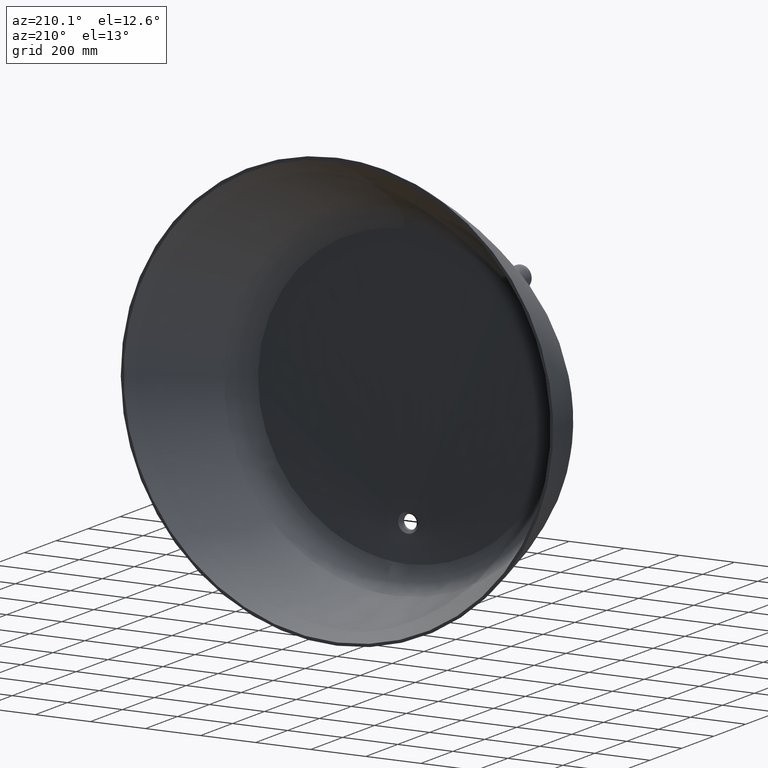
[diagram: clean part render]
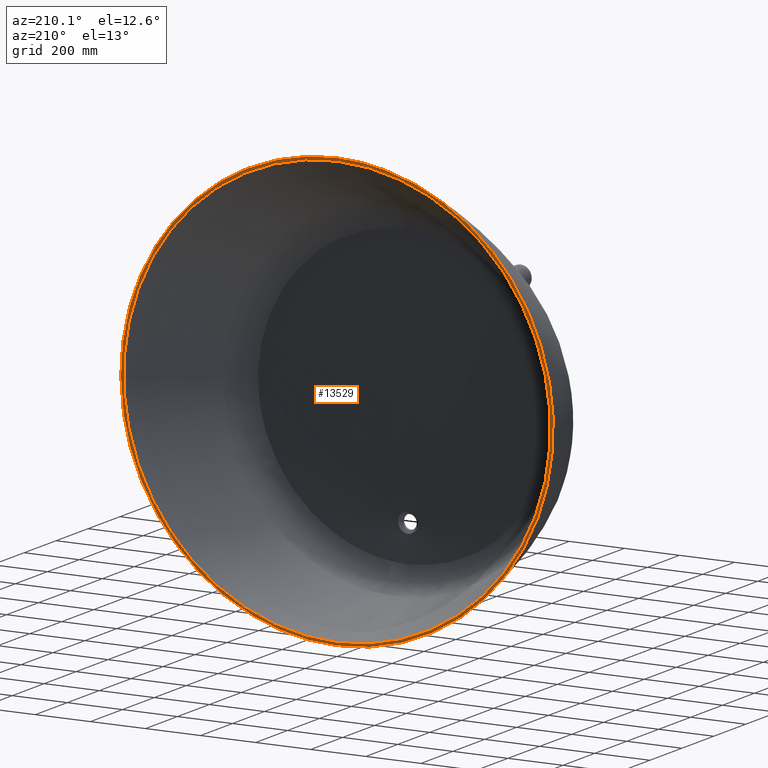
[diagram: same view with one face highlighted and labeled with its STEP entity id]
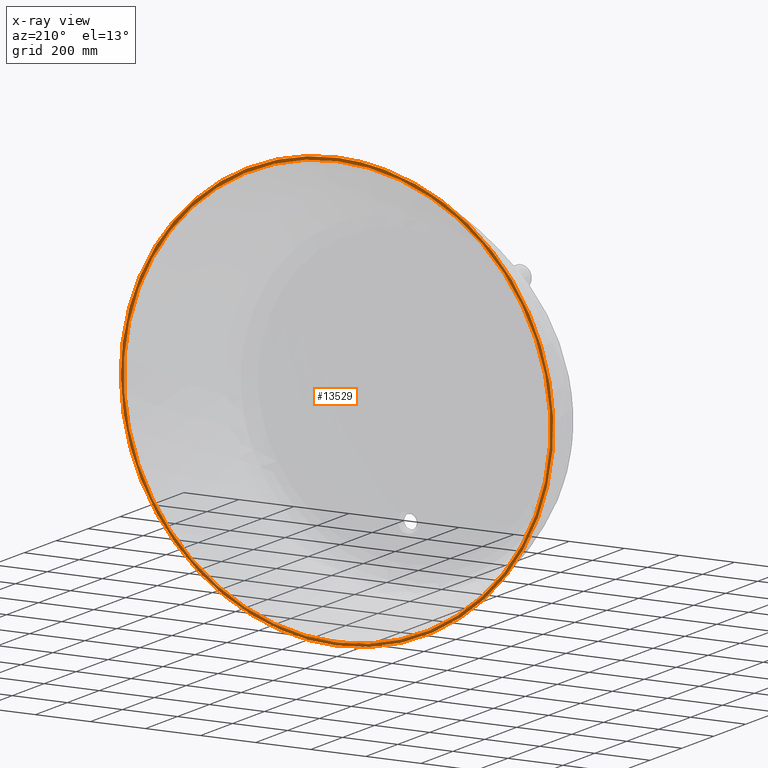
[diagram: x-ray of the same camera — body ghosted, the highlighted face saturated]
A machine part, auxiliary view. The second image highlights one B-rep face of the part: STEP entity #13529.
The next image is the same camera in x-ray: the body ghosted, the highlighted face saturated — about 0% of this face is hidden behind the body in this view.
In plain terms, the highlighted planar face has unit normal (0, 1, 0).
Its self-contained STEP definition (entity closure, byte-faithful):
#189 = CARTESIAN_POINT ( 'NONE',  ( 1.815119978694758100E-013, 1.070107544243192900E-013, -785.0959402566785500 ) ) ;
#229 = CARTESIAN_POINT ( 'NONE',  ( 25.94525831148332900, 3.577867169198714200E-015, -785.0959402566785500 ) ) ;
#244 = CARTESIAN_POINT ( 'NONE',  ( 51.75370344990371800, 1.480261226094463200E-012, -783.8140912657796700 ) ) ;
#293 = CARTESIAN_POINT ( 'NONE',  ( 103.1001083290769000, 1.480261226094461800E-012, -778.7293619315756800 ) ) ;
#302 = CARTESIAN_POINT ( 'NONE',  ( 5.344556381072045500E-015, -3.851086116668511700E-013, 785.9687817933657900 ) ) ;
#308 = CARTESIAN_POINT ( 'NONE',  ( 128.6383085348649300, 5.773376568485289900E-013, -774.9265034201271200 ) ) ;
#350 = CARTESIAN_POINT ( 'NONE',  ( 157.2150163428085800, 5.773376568485241400E-013, -769.2125862332720800 ) ) ;
#366 = CARTESIAN_POINT ( 'NONE',  ( 160.3880644664944300, -8.977193988179908100E-013, -768.5577104700300900 ) ) ;
#475 = CARTESIAN_POINT ( 'NONE',  ( 166.7298632030710300, -8.977193988179958500E-013, -767.2078337859902600 ) ) ;
#539 = CARTESIAN_POINT ( 'NONE',  ( 169.8981915939014300, -4.696763811207227400E-013, -766.5128933312732900 ) ) ;
#570 = CARTESIAN_POINT ( 'NONE',  ( 1.815119978694758100E-013, 1.070107544243192900E-013, -785.0959402566785500 ) ) ;
#593 = CARTESIAN_POINT ( 'NONE',  ( 179.3751002020173900, -4.696763811207205200E-013, -764.3727390240404700 ) ) ;
#661 = CARTESIAN_POINT ( 'NONE',  ( 185.6627972564763800, 6.339330102522747500E-013, -762.8706981761316700 ) ) ;
#724 = CARTESIAN_POINT ( 'NONE',  ( 204.4361666616772800, 6.339330102522762600E-013, -758.1412613569880200 ) ) ;
#739 = CARTESIAN_POINT ( 'NONE',  ( 216.8321830998326000, 2.634611279139757100E-013, -754.6907149976790400 ) ) ;
#779 = CARTESIAN_POINT ( 'NONE',  ( 253.6670764050722900, 2.634611279139776300E-013, -743.4600831323736000 ) ) ;
#797 = CARTESIAN_POINT ( 'NONE',  ( 277.7538758951967000, 1.249000902703290800E-013, -734.8036895164665300 ) ) ;
#839 = CARTESIAN_POINT ( 'NONE',  ( 324.9978469039351100, 1.249000902703300600E-013, -715.1770912194068600 ) ) ;
#858 = CARTESIAN_POINT ( 'NONE',  ( 348.1551300766145700, -1.194357113210041000E-012, -704.2071644412656000 ) ) ;
#885 = CARTESIAN_POINT ( 'NONE',  ( 382.1812122705079000, -1.194357113210030300E-012, -685.9855012937779300 ) ) ;
#921 = CARTESIAN_POINT ( 'NONE',  ( 393.4047094727542900, -8.710480253748558800E-013, -679.6165961227670800 ) ) ;
#1008 = CARTESIAN_POINT ( 'NONE',  ( 407.2830081788543500, -8.710480253748445700E-013, -671.2794498236173700 ) ) ;
#1031 = CARTESIAN_POINT ( 'NONE',  ( 410.0528000324463300, 1.198260241030969800E-012, -669.5921567203579300 ) ) ;
#1074 = CARTESIAN_POINT ( 'NONE',  ( 415.5687996021988500, 1.198260241030974200E-012, -666.1848926833374700 ) ) ;
#1140 = CARTESIAN_POINT ( 'NONE',  ( 418.3133902535020600, 5.009014036883597800E-014, -664.4659541568648800 ) ) ;
#1165 = CARTESIAN_POINT ( 'NONE',  ( 426.5071669839801400, 5.009014036882979400E-014, -659.2634840836200300 ) ) ;
#1204 = CARTESIAN_POINT ( 'NONE',  ( 431.9163613145415200, 1.571008947931500700E-013, -655.7343020095215700 ) ) ;
#1228 = CARTESIAN_POINT ( 'NONE',  ( 458.6984057472073500, 1.571008947931495900E-013, -637.7871190717435200 ) ) ;
#1249 = CARTESIAN_POINT ( 'NONE',  ( 479.2819659694236000, -9.159339953157618200E-013, -622.4681448703335000 ) ) ;
#1314 = CARTESIAN_POINT ( 'NONE',  ( 518.8035867812813000, -9.159339953157541500E-013, -589.9518608471381600 ) ) ;
#1331 = CARTESIAN_POINT ( 'NONE',  ( 537.7418687549669600, 1.541735489274463500E-013, -572.7548037349413300 ) ) ;
#1374 = CARTESIAN_POINT ( 'NONE',  ( 573.9640470441347600, 1.541735489274425700E-013, -536.4722105038548500 ) ) ;
#1430 = CARTESIAN_POINT ( 'NONE',  ( 591.2484239330373200, 9.575673587391938800E-013, -517.3872229588778300 ) ) ;
#1452 = CARTESIAN_POINT ( 'NONE',  ( 609.7303918709955000, 9.575673587391934800E-013, -494.8173989193680300 ) ) ;
#1498 = CARTESIAN_POINT ( 'NONE',  ( 611.7700433596529600, 1.060349724690863200E-013, -492.2948808476235700 ) ) ;
#1515 = CARTESIAN_POINT ( 'NONE',  ( 615.8111650989723100, 1.060349724690809800E-013, -487.2333464860817600 ) ) ;
#1571 = FACE_OUTER_BOUND ( 'NONE', #16641, .T. ) ;
#1576 = CARTESIAN_POINT ( 'NONE',  ( 617.8140548859453200, -1.814954436740721300E-013, -484.6926074156813200 ) ) ;
#1621 = CARTESIAN_POINT ( 'NONE',  ( 623.7700227007767400, -1.814954436740707900E-013, -477.0406504307257500 ) ) ;
#1643 = CARTESIAN_POINT ( 'NONE',  ( 627.6704090231011200, -7.318364664277179200E-013, -471.8996982955009100 ) ) ;
#1689 = CARTESIAN_POINT ( 'NONE',  ( 639.1629116150218100, -7.318364664277174100E-013, -456.3590959441073100 ) ) ;
#1705 = CARTESIAN_POINT ( 'NONE',  ( 646.5464979202514500, -3.265616943526321200E-013, -445.8417711164615300 ) ) ;
#1750 = CARTESIAN_POINT ( 'NONE',  ( 667.8745983568502400, -3.265616943526295900E-013, -413.8255659067821700 ) ) ;
#1769 = CARTESIAN_POINT ( 'NONE',  ( 680.9991094084296000, 6.069363761573812400E-013, -391.8639532545140600 ) ) ;
#1815 = CARTESIAN_POINT ( 'NONE',  ( 705.0750667557686000, 6.069363761573831600E-013, -346.7144554973330100 ) ) ;
#1874 = CARTESIAN_POINT ( 'NONE',  ( 716.0270524201394000, 1.320558246087366600E-013, -323.5268747611086200 ) ) ;
#1890 = CARTESIAN_POINT ( 'NONE',  ( 728.3298517761546700, 1.320558246087362800E-013, -293.7596039622033000 ) ) ;
#1937 = CARTESIAN_POINT ( 'NONE',  ( 730.7208949227165200, 5.080571380267056600E-013, -287.7669211304755700 ) ) ;
#1955 = CARTESIAN_POINT ( 'NONE',  ( 734.2021850845058000, 5.080571380267028300E-013, -278.7184898679016700 ) ) ;
#2004 = CARTESIAN_POINT ( 'NONE',  ( 735.3450668473132100, -4.657732532997682600E-013, -275.6924435160379400 ) ) ;
#2067 = CARTESIAN_POINT ( 'NONE',  ( 737.5955362926646300, -4.657732532997780600E-013, -269.6204341677399200 ) ) ;
#2089 = CARTESIAN_POINT ( 'NONE',  ( 738.7037460876104000, -1.604185534409547500E-012, -266.5727176344946700 ) ) ;
#2133 = CARTESIAN_POINT ( 'NONE',  ( 744.1485434563123800, -1.604185534409544100E-012, -251.3050721701065700 ) ) ;
#2152 = CARTESIAN_POINT ( 'NONE',  ( 748.1842079066668700, 2.179246366695775100E-013, -239.0339299214888600 ) ) ;
#2197 = CARTESIAN_POINT ( 'NONE',  ( 759.3502651348533200, 2.179246366695862400E-013, -202.0529136749693200 ) ) ;
#2219 = CARTESIAN_POINT ( 'NONE',  ( 765.5427363855953900, 1.756407519426519000E-013, -177.1759871040309500 ) ) ;
#2245 = CARTESIAN_POINT ( 'NONE',  ( 775.4742151373292200, 1.756407519426508900E-013, -126.9851491820708300 ) ) ;
#2268 = CARTESIAN_POINT ( 'NONE',  ( 779.2135423676398900, -4.553649124438231200E-015, -101.6712947778247600 ) ) ;
#2310 = CARTESIAN_POINT ( 'NONE',  ( 782.9669682905051800, -4.553649124434682100E-015, -63.37001974977221900 ) ) ;
#2328 = CARTESIAN_POINT ( 'NONE',  ( 783.9082872828311100, -1.868947704930517400E-012, -50.54774571059557800 ) ) ;
#2355 = CIRCLE ( 'NONE', #5812, 775.0000000000000000 ) ;
#2371 = CARTESIAN_POINT ( 'NONE',  ( 784.8487612153642200, -1.868947704930512900E-012, -31.23035529215451300 ) ) ;
#2390 = CARTESIAN_POINT ( 'NONE',  ( 785.0836257629492800, -2.634611279139775300E-013, -24.77722099269590900 ) ) ;
#2403 = CARTESIAN_POINT ( 'NONE',  ( 785.3167431488882400, -2.634611279139776300E-013, -15.07629257433459800 ) ) ;
#2484 = CARTESIAN_POINT ( 'NONE',  ( 785.3745829255656200, -1.131907068074867600E-013, -11.83911144498245900 ) ) ;
#2508 = CARTESIAN_POINT ( 'NONE',  ( 785.4502899937826900, -1.131907068074867100E-013, -5.357629713805713400 ) ) ;
#2549 = CARTESIAN_POINT ( 'NONE',  ( 785.4681227660963700, 5.022024462952855500E-013, -2.113467687300816200 ) ) ;
#2606 = CARTESIAN_POINT ( 'NONE',  ( 785.4482271597014500, 5.022024462952848500E-013, 27.03433614791218900 ) ) ;
#2627 = CARTESIAN_POINT ( 'NONE',  ( 784.1537883591229300, 8.027432885082683900E-013, 52.73643792330051400 ) ) ;
#2668 = CARTESIAN_POINT ( 'NONE',  ( 779.0919681251160700, 8.027432885082704100E-013, 103.7395927019024000 ) ) ;
#2731 = CARTESIAN_POINT ( 'NONE',  ( 775.3250443857475600, -4.195862407518931400E-013, 129.0407199315211800 ) ) ;
#2754 = CARTESIAN_POINT ( 'NONE',  ( 765.3263274555540600, -4.195862407518909700E-013, 179.2432348844932900 ) ) ;
#2776 = CARTESIAN_POINT ( 'NONE',  ( 759.0955533977814900, -1.320558246087338600E-013, 204.1447878854616200 ) ) ;
#2835 = CARTESIAN_POINT ( 'NONE',  ( 749.7268878719470400, -1.320558246087336600E-013, 235.0154609803979600 ) ) ;
#2953 = CARTESIAN_POINT ( 'NONE',  ( 747.7739599595940900, -4.696763811207214300E-013, 241.1767522039252500 ) ) ;
#2965 = CARTESIAN_POINT ( 'NONE',  ( 744.7245683192835500, -4.696763811207205200E-013, 250.3992281101608600 ) ) ;
#3021 = CARTESIAN_POINT ( 'NONE',  ( 743.6874861119689500, -7.916844263489152400E-013, 253.4719180639137900 ) ) ;
#3063 = CARTESIAN_POINT ( 'NONE',  ( 741.5760316738779900, -7.916844263489153400E-013, 259.6022121648767900 ) ) ;
#3084 = CARTESIAN_POINT ( 'NONE',  ( 740.5024349709880200, -2.719179048593646600E-013, 262.6576458241554500 ) ) ;
#3139 = CARTESIAN_POINT ( 'NONE',  ( 735.0456269548751600, -2.719179048593616300E-013, 277.8865314090544400 ) ) ;
#3209 = CARTESIAN_POINT ( 'NONE',  ( 730.3961166861737400, 9.276433787785947700E-013, 289.9152300808066200 ) ) ;
#3251 = CARTESIAN_POINT ( 'NONE',  ( 715.6102378208269100, 9.276433787785982000E-013, 325.5461652563305400 ) ) ;
#3270 = B_SPLINE_CURVE_WITH_KNOTS ( 'NONE', 3,
 ( #9499, #9703, #9219, #9159, #9114, #9091, #9048, #9027, #8983, #8962, #8923, #8896, #8874, #8852, #8832, #8816, #8775, #8754, #8734, #8713, #8691, #8671, #8646, #8625, #8521, #8501, #8463, #8442, #8400, #8381, #8352, #8333, #8311, #8284, #8265, #8204, #8145, #8122, #8078, #8055, #8009, #7986, #7939, #7875, #7807, #7784, #7739, #7711, #7671, #7651, #7607, #7582, #7519, #7479, #7454, #7416, #7393, #7370, #7343, #7321, #7298, #7272, #7252, #7212, #7170, #7152, #7128, #7106, #6999, #6973, #6928, #6907, #6860, #6841, #6819, #6804, #6788, #6769, #6751, #6733, #6690, #6673, #6637, #6617, #6579, #6557, #6514, #6494, #6460, #6439, #6372, #6323, #6299, #6254, #6232, #6188, #6173, #6134, #6108, #6070, #6015, #5995, #5934, #5915, #5898, #5880, #5862, #5841, #5820, #5804, #5780, #5753, #5732, #5712, #5685, #5663, #5627, #5608, #5569, #5548 ),
 .UNSPECIFIED., .F., .F.,
 ( 4, 2, 2, 2, 2, 2, 2, 2, 2, 2, 2, 2, 2, 2, 2, 2, 2, 2, 2, 2, 2, 2, 2, 2, 2, 2, 2, 2, 2, 2, 2, 2, 2, 2, 2, 2, 2, 2, 2, 2, 2, 2, 2, 2, 2, 2, 2, 2, 2, 2, 2, 2, 2, 2, 2, 2, 2, 2, 2, 4 ),
 ( 1.763335436168463400E-017, 0.07676668847747947200, 0.1535333769549589400, 0.2303000654324384400, 0.2494917375518083400, 0.2590875736114933200, 0.2686834096711783200, 0.3070667539099185600, 0.3838334423873990800, 0.4606001308648794400, 0.4989834751036195700, 0.5181751472229897400, 0.5277709832826746900, 0.5373668193423597500, 0.6141335078198390000, 0.6909001962973183600, 0.7676668847747978300, 0.7868585568941677300, 0.7964543929538527900, 0.8060502290135378400, 0.8444335732522779700, 0.9212002617297580000, 0.9979669502072381300, 1.036350294445978400, 1.045946130505663400, 1.055541966565348500, 1.074733638684718800, 1.151500327162199300, 1.228267015639680000, 1.305033704117160500, 1.314629540176845500, 1.324225376236530400, 1.343417048355900500, 1.381800392594640500, 1.458567081072121000, 1.535333769549601200, 1.573717113788341200, 1.583312949848026100, 1.592908785907711100, 1.612100458027081000, 1.688867146504560600, 1.765633834982040400, 1.842400523459520000, 1.851996359519204800, 1.861592195578889700, 1.880783867698259100, 1.919167211936997800, 1.995933900414475400, 2.072700588891952700, 2.091892261011322000, 2.101488097071007000, 2.111083933130691600, 2.149467277369430600, 2.226233965846908800, 2.303000654324387100, 2.341383998563126000, 2.360575670682495600, 2.370171506742180200, 2.379767342801864900, 2.456534031279343100 ),
 .UNSPECIFIED. ) ;
#3328 = CARTESIAN_POINT ( 'NONE',  ( 704.6401813189334000, 8.463282158421848600E-013, 348.6952304858174900 ) ) ;
#3401 = CARTESIAN_POINT ( 'NONE',  ( 680.5076612025101200, 8.463282158421862800E-013, 393.8016249021647500 ) ) ;
#3419 = DIRECTION ( 'NONE',  ( 0.0000000000000000000, 0.0000000000000000000, 1.000000000000000000 ) ) ;
#3443 = DIRECTION ( 'NONE',  ( 0.0000000000000000000, 1.000000000000000000, 0.0000000000000000000 ) ) ;
#3452 = CARTESIAN_POINT ( 'NONE',  ( 667.3463146453873400, 2.062152532067414300E-013, 415.7595612926635300 ) ) ;
#3522 = CARTESIAN_POINT ( 'NONE',  ( 645.9390264104224600, 2.062152532067430700E-013, 447.7912688643026500 ) ) ;
#3532 = CARTESIAN_POINT ( 'NONE',  ( 0.0000000000000000000, 0.0000000000000000000, 0.0000000000000000000 ) ) ;
#3543 = CARTESIAN_POINT ( 'NONE',  ( 638.5253163517355700, 2.641116492174687300E-013, 458.3174197201136100 ) ) ;
#3587 = CARTESIAN_POINT ( 'NONE',  ( 626.9809715404386500, 2.641116492174726700E-013, 473.8762902603923500 ) ) ;
#3606 = CARTESIAN_POINT ( 'NONE',  ( 623.0621787577500800, -1.342675970406052900E-012, 479.0241617838781800 ) ) ;
#3631 = CARTESIAN_POINT ( 'NONE',  ( 617.0766680804465500, -1.342675970406052500E-012, 486.6876318639131700 ) ) ;
#3651 = CARTESIAN_POINT ( 'NONE',  ( 615.0640766474364200, 5.074066167232483200E-014, 489.2317412984147600 ) ) ;
#3669 = CARTESIAN_POINT ( 'NONE',  ( 611.0143521233901500, 5.074066167232160800E-014, 494.2863069189842800 ) ) ;
#3696 = CARTESIAN_POINT ( 'NONE',  ( 608.9758529902225100, 1.709569985575143400E-012, 496.7985164943281700 ) ) ;
#3716 = CARTESIAN_POINT ( 'NONE',  ( 590.5074114539040700, 1.709569985575143000E-012, 519.2736084809805600 ) ) ;
#3753 = CARTESIAN_POINT ( 'NONE',  ( 573.2268503243771000, -4.800847219765811600E-013, 538.2962769845692000 ) ) ;
#3770 = CARTESIAN_POINT ( 'NONE',  ( 536.9852885687581600, -4.800847219765813600E-013, 574.4841747692577200 ) ) ;
#3789 = CARTESIAN_POINT ( 'NONE',  ( 518.0250027142473100, 1.782428371566179900E-013, 591.6501941084185300 ) ) ;
#3830 = CARTESIAN_POINT ( 'NONE',  ( 478.4241270335242000, 1.782428371566169300E-013, 624.1249433638721500 ) ) ;
#3869 = CARTESIAN_POINT ( 'NONE',  ( 457.7844004392792400, 7.676151381197352500E-014, 639.4346274358592800 ) ) ;
#3893 = CARTESIAN_POINT ( 'NONE',  ( 433.5922043617651400, 7.676151381197293100E-014, 655.5830851066424400 ) ) ;
#3929 = CARTESIAN_POINT ( 'NONE',  ( 430.8906376010261300, -5.581472783955368700E-013, 657.3623865224643600 ) ) ;
#3956 = CARTESIAN_POINT ( 'NONE',  ( 425.4602769796360300, -5.581472783955377800E-013, 660.8908944394206600 ) ) ;
#3996 = CARTESIAN_POINT ( 'NONE',  ( 422.7297688463993400, 2.406928822917819800E-012, 662.6411799899182100 ) ) ;
#4056 = CARTESIAN_POINT ( 'NONE',  ( 414.5100057276088100, 2.406928822917821500E-012, 667.8385470202870200 ) ) ;
#4082 = CARTESIAN_POINT ( 'NONE',  ( 408.9986440679112400, 6.140921104957878900E-013, 671.2284173194954100 ) ) ;
#4122 = CARTESIAN_POINT ( 'NONE',  ( 392.3711072406200100, 6.140921104957897100E-013, 681.1755403188209400 ) ) ;
#4146 = CARTESIAN_POINT ( 'NONE',  ( 381.1615550808971900, -1.170938346284336300E-014, 687.5104833361574500 ) ) ;
#4170 = CARTESIAN_POINT ( 'NONE',  ( 347.1650957294271500, -1.170938346284325100E-014, 705.6396562120056600 ) ) ;
#4185 = CARTESIAN_POINT ( 'NONE',  ( 324.0119478417345200, 7.194765616613813500E-013, 716.5619490860259500 ) ) ;
#4206 = CARTESIAN_POINT ( 'NONE',  ( 276.7401443597816000, 7.194765616613813500E-013, 736.1078774552257800 ) ) ;
#4229 = CARTESIAN_POINT ( 'NONE',  ( 252.6217187173638800, -1.886511780124784000E-013, 744.7320604141840500 ) ) ;
#4250 = CARTESIAN_POINT ( 'NONE',  ( 215.7085935399542500, -1.886511780124775900E-013, 755.9173058860153600 ) ) ;
#4288 = CARTESIAN_POINT ( 'NONE',  ( 203.2813494903180400, 7.806255641895613000E-014, 759.3531975246055500 ) ) ;
#4312 = CARTESIAN_POINT ( 'NONE',  ( 187.5910419784534000, 7.806255641895647100E-014, 763.2760600222170500 ) ) ;
#4369 = CARTESIAN_POINT ( 'NONE',  ( 184.4451611151873500, 3.786033986319378500E-013, 764.0420163765826400 ) ) ;
#4407 = CARTESIAN_POINT ( 'NONE',  ( 178.1376664396831600, 3.786033986319386500E-013, 765.5364724611992000 ) ) ;
#4427 = CARTESIAN_POINT ( 'NONE',  ( 174.9763593134068500, -1.133208110681849600E-012, 766.2648623201408800 ) ) ;
#4471 = CARTESIAN_POINT ( 'NONE',  ( 165.4953921638043500, -1.133208110681850000E-012, 768.3877353676632500 ) ) ;
#4487 = CARTESIAN_POINT ( 'NONE',  ( 159.1698678379858300, 1.074661193367632600E-012, 769.7220583822786500 ) ) ;
#4533 = CARTESIAN_POINT ( 'NONE',  ( 127.5180873963229300, 1.074661193367631200E-012, 775.9930085062636600 ) ) ;
#4554 = CARTESIAN_POINT ( 'NONE',  ( 102.1196278045051000, -1.062951809904788500E-012, 779.7321677375354100 ) ) ;
#4610 = CARTESIAN_POINT ( 'NONE',  ( 51.17254562448242400, -1.062951809904788500E-012, 784.7200885810254900 ) ) ;
#5117 = ORIENTED_EDGE ( 'NONE', *, *, #8324, .F. ) ;
#5266 = EDGE_CURVE ( 'NONE', #11731, #11705, #2355, .T. ) ;
#5548 = CARTESIAN_POINT ( 'NONE',  ( 5.344556381072045500E-015, -3.851086116668511700E-013, 785.9687817933657900 ) ) ;
#5569 = CARTESIAN_POINT ( 'NONE',  ( -25.62941991326893300, -7.728193085476814900E-013, 785.9687817933650000 ) ) ;
#5608 = CARTESIAN_POINT ( 'NONE',  ( -51.33414972473590900, 2.214374517084387000E-012, 784.7197950544541500 ) ) ;
#5627 = CARTESIAN_POINT ( 'NONE',  ( -80.33953751837060500, 2.214374517084408800E-012, 781.8624227964975300 ) ) ;
#5663 = CARTESIAN_POINT ( 'NONE',  ( -83.56537764135328000, -8.756016744993081200E-013, 781.5244913385868100 ) ) ;
#5685 = CARTESIAN_POINT ( 'NONE',  ( -90.01096322484089300, -8.756016744993014600E-013, 780.8088808417710400 ) ) ;
#5712 = CARTESIAN_POINT ( 'NONE',  ( -93.22819715972370600, 8.677954188574060300E-013, 780.4315060502910900 ) ) ;
#5732 = CARTESIAN_POINT ( 'NONE',  ( -102.8633299704183900, 8.677954188573936100E-013, 779.2410517621880200 ) ) ;
#5753 = CARTESIAN_POINT ( 'NONE',  ( -109.2646637629560000, -4.293440603042165300E-014, 778.3696561191525200 ) ) ;
#5780 = CARTESIAN_POINT ( 'NONE',  ( -128.4031167117689400, -4.293440603042223300E-014, 775.5247108106386800 ) ) ;
#5781 = CARTESIAN_POINT ( 'NONE',  ( 25.62391891198412700, -7.728193085476675600E-013, 785.9687817933654500 ) ) ;
#5804 = CARTESIAN_POINT ( 'NONE',  ( -141.0747452133011600, 7.533036694429248500E-013, 773.3206061550414500 ) ) ;
#5812 = AXIS2_PLACEMENT_3D ( 'NONE', #3532, #3443, #3419 ) ;
#5820 = CARTESIAN_POINT ( 'NONE',  ( -178.8311606324232100, 7.533036694429289900E-013, 765.7983674327755400 ) ) ;
#5841 = CARTESIAN_POINT ( 'NONE',  ( -203.6583539723159500, 6.661338147750941300E-013, 759.5733942912196400 ) ) ;
#5859 = VERTEX_POINT ( 'NONE', #570 ) ;
#5862 = CARTESIAN_POINT ( 'NONE',  ( -252.6312908177705800, 6.661338147750973600E-013, 744.7244544350774000 ) ) ;
#5880 = CARTESIAN_POINT ( 'NONE',  ( -276.7769720499176700, -5.854691731421543500E-014, 736.1002684915565600 ) ) ;
#5898 = CARTESIAN_POINT ( 'NONE',  ( -312.4741752353168600, -5.854691731421626800E-014, 721.3287259096032400 ) ) ;
#5915 = CARTESIAN_POINT ( 'NONE',  ( -324.2860933802530200, 1.483188571960160500E-013, 716.0980747406275700 ) ) ;
#5934 = CARTESIAN_POINT ( 'NONE',  ( -338.9399400724062200, 1.483188571960240000E-013, 709.1688140133960600 ) ) ;
#5975 = ORIENTED_EDGE ( 'NONE', *, *, #5266, .F. ) ;
#5995 = CARTESIAN_POINT ( 'NONE',  ( -341.8645770238540000, -1.342675970406055800E-012, 707.7636311827997100 ) ) ;
#6015 = CARTESIAN_POINT ( 'NONE',  ( -347.6864149979977000, -1.342675970406053500E-012, 704.9220027316424600 ) ) ;
#6070 = CARTESIAN_POINT ( 'NONE',  ( -350.5856460063258700, -2.042636892962636600E-013, 703.4846050962117900 ) ) ;
#6108 = CARTESIAN_POINT ( 'NONE',  ( -359.2484654198861400, -2.042636892962703000E-013, 699.1229320014362000 ) ) ;
#6134 = CARTESIAN_POINT ( 'NONE',  ( -364.9771882487260700, 6.895525817007939500E-014, 696.1491877540559000 ) ) ;
#6173 = CARTESIAN_POINT ( 'NONE',  ( -393.3903962098421500, 6.895525817008088400E-014, 680.9535562574657200 ) ) ;
#6188 = CARTESIAN_POINT ( 'NONE',  ( -415.3857324147592200, 6.583275591331956700E-013, 667.7538746982483000 ) ) ;
#6232 = CARTESIAN_POINT ( 'NONE',  ( -457.9381395102897200, 6.583275591331925400E-013, 639.3138385340048400 ) ) ;
#6254 = CARTESIAN_POINT ( 'NONE',  ( -478.4946493738976300, -5.516420653606190000E-013, 624.0726879195973400 ) ) ;
#6299 = CARTESIAN_POINT ( 'NONE',  ( -508.2428292186518200, -5.516420653606282900E-013, 599.6692682654478400 ) ) ;
#6323 = CARTESIAN_POINT ( 'NONE',  ( -517.9771902156609300, 2.406928822917857200E-013, 591.2769927152658100 ) ) ;
#6372 = CARTESIAN_POINT ( 'NONE',  ( -532.3027006002194000, 2.406928822917865800E-013, 578.2969345089497900 ) ) ;
#6439 = CARTESIAN_POINT ( 'NONE',  ( -537.0318413776293500, -7.246807320893157100E-013, 573.9049400061135200 ) ) ;
#6460 = CARTESIAN_POINT ( 'NONE',  ( -544.0558031970325600, -7.246807320893112600E-013, 567.2179848614608800 ) ) ;
#6494 = CARTESIAN_POINT ( 'NONE',  ( -546.3854968721577700, 9.861902960928148300E-013, 564.9725030200852400 ) ) ;
#6514 = CARTESIAN_POINT ( 'NONE',  ( -551.0214876871416400, 9.861902960928148300E-013, 560.4483433209886700 ) ) ;
#6557 = CARTESIAN_POINT ( 'NONE',  ( -553.3292709910823500, -3.642919299551296400E-013, 558.1681718464792500 ) ) ;
#6558 = VERTEX_POINT ( 'NONE', #302 ) ;
#6579 = CARTESIAN_POINT ( 'NONE',  ( -573.9590224611579300, -3.642919299551343400E-013, 537.5306561301694000 ) ) ;
#6617 = CARTESIAN_POINT ( 'NONE',  ( -591.2371275787340900, 3.070460552478949100E-013, 518.4309572330942000 ) ) ;
#6637 = CARTESIAN_POINT ( 'NONE',  ( -623.7485725243186600, 3.070460552478996500E-013, 478.7739286107800500 ) ) ;
#6673 = CARTESIAN_POINT ( 'NONE',  ( -638.9807111096138200, -7.129713486264652900E-013, 458.2157425679866900 ) ) ;
#6690 = CARTESIAN_POINT ( 'NONE',  ( -667.4112213702820800, -7.129713486264748800E-013, 415.6495799561555500 ) ) ;
#6733 = CARTESIAN_POINT ( 'NONE',  ( -680.6086509863855600, 8.313662258618811600E-013, 393.6409318310038500 ) ) ;
#6751 = CARTESIAN_POINT ( 'NONE',  ( -695.8045317419005200, 8.313662258618849000E-013, 365.2027579886039300 ) ) ;
#6769 = CARTESIAN_POINT ( 'NONE',  ( -698.7784241269251900, 2.732189474663471200E-014, 359.4685850523932800 ) ) ;
#6788 = CARTESIAN_POINT ( 'NONE',  ( -703.1403398843368700, 2.732189474663473700E-014, 350.7968075534298600 ) ) ;
#6804 = CARTESIAN_POINT ( 'NONE',  ( -704.5778272089289700, 7.311859451242242900E-013, 347.8944638501915800 ) ) ;
#6819 = CARTESIAN_POINT ( 'NONE',  ( -707.4196521145238400, 7.311859451242242900E-013, 342.0661453265161100 ) ) ;
#6841 = CARTESIAN_POINT ( 'NONE',  ( -708.8234699132500500, -5.061055741162335700E-013, 339.1411621009112300 ) ) ;
#6860 = CARTESIAN_POINT ( 'NONE',  ( -715.7403191822203300, -5.061055741162342800E-013, 324.4978112265372400 ) ) ;
#6907 = CARTESIAN_POINT ( 'NONE',  ( -720.9622254444685700, -6.466181756703542400E-013, 312.6930033497045000 ) ) ;
#6928 = CARTESIAN_POINT ( 'NONE',  ( -735.7111103854530300, -6.466181756703558500E-013, 277.0133718672939800 ) ) ;
#6973 = CARTESIAN_POINT ( 'NONE',  ( -744.3231682082509900, -5.204170427930422300E-013, 252.8738937706134800 ) ) ;
#6999 = CARTESIAN_POINT ( 'NONE',  ( -759.1528635765042700, -5.204170427930540400E-013, 203.9023158320277700 ) ) ;
#7027 = CARTESIAN_POINT ( 'NONE',  ( 5.344556381072045500E-015, -3.851086116668511700E-013, 785.9687817933657900 ) ) ;
#7106 = CARTESIAN_POINT ( 'NONE',  ( -765.3694498217773800, 1.167685739766888300E-012, 179.0699118858783000 ) ) ;
#7126 = ORIENTED_EDGE ( 'NONE', *, *, #12941, .T. ) ;
#7128 = CARTESIAN_POINT ( 'NONE',  ( -772.8797410108317100, 1.167685739766883400E-012, 141.2964092961746600 ) ) ;
#7152 = CARTESIAN_POINT ( 'NONE',  ( -775.0798010296650800, 8.912141857831379100E-014, 128.6174873639605500 ) ) ;
#7170 = CARTESIAN_POINT ( 'NONE',  ( -777.9181594016632700, 8.912141857830703800E-014, 109.4655417036594100 ) ) ;
#7212 = CARTESIAN_POINT ( 'NONE',  ( -778.7872820265080200, -5.412337245047623000E-013, 103.0592873357409600 ) ) ;
#7252 = CARTESIAN_POINT ( 'NONE',  ( -779.9741869129156800, -5.412337245047640200E-013, 93.41612570324164700 ) ) ;
#7272 = CARTESIAN_POINT ( 'NONE',  ( -780.3505710689351000, -3.961674738262033200E-013, 90.19411963816577300 ) ) ;
#7298 = CARTESIAN_POINT ( 'NONE',  ( -781.0630760787207700, -3.961674738262032700E-013, 83.74863426737451300 ) ) ;
#7321 = CARTESIAN_POINT ( 'NONE',  ( -781.3990190518579800, -1.554745915344213600E-013, 80.52702524297342300 ) ) ;
#7343 = CARTESIAN_POINT ( 'NONE',  ( -784.2407057140441100, -1.554745915344235300E-013, 51.54269195193227700 ) ) ;
#7370 = CARTESIAN_POINT ( 'NONE',  ( -785.4777596596681000, -1.082467449009525200E-012, 25.85078488054046300 ) ) ;
#7393 = CARTESIAN_POINT ( 'NONE',  ( -785.4542655682490700, -1.082467449009522600E-012, -25.39361521860272600 ) ) ;
#7416 = CARTESIAN_POINT ( 'NONE',  ( -784.1940221614506800, 4.143820703239599500E-013, -50.94612525055830300 ) ) ;
#7454 = CARTESIAN_POINT ( 'NONE',  ( -779.1803020132989600, 4.143820703239589900E-013, -101.9119751250938000 ) ) ;
#7479 = CARTESIAN_POINT ( 'NONE',  ( -775.4267131020160400, 1.079865363795558300E-013, -127.3253087064427400 ) ) ;
#7519 = CARTESIAN_POINT ( 'NONE',  ( -769.1335419534292400, 1.079865363795562800E-013, -159.0025988815654600 ) ) ;
#7582 = CARTESIAN_POINT ( 'NONE',  ( -767.7946172737326800, 6.401129626354416200E-013, -165.3335751711496200 ) ) ;
#7607 = CARTESIAN_POINT ( 'NONE',  ( -765.6644397094689800, 6.401129626354395000E-013, -174.8232413596748200 ) ) ;
#7651 = CARTESIAN_POINT ( 'NONE',  ( -764.9342144993876200, -2.992397996059968500E-013, -177.9845773179261000 ) ) ;
#7671 = CARTESIAN_POINT ( 'NONE',  ( -763.4372631988869700, -2.992397996059996300E-013, -184.2873847358852700 ) ) ;
#7711 = CARTESIAN_POINT ( 'NONE',  ( -762.6700567993486900, -4.534133485334375500E-013, -187.4310264438345000 ) ) ;
#7739 = CARTESIAN_POINT ( 'NONE',  ( -758.7409104313956000, -4.534133485334378500E-013, -203.1106484953003000 ) ) ;
#7784 = CARTESIAN_POINT ( 'NONE',  ( -755.2998384801474000, -2.563053935755732500E-013, -215.5309568651542200 ) ) ;
#7807 = CARTESIAN_POINT ( 'NONE',  ( -744.0989286364847400, -2.563053935755728400E-013, -252.4281665915680700 ) ) ;
#7875 = CARTESIAN_POINT ( 'NONE',  ( -735.4634015088826100, -1.027823659516256100E-013, -276.5421833330406100 ) ) ;
#7939 = CARTESIAN_POINT ( 'NONE',  ( -715.8896214848305100, -1.027823659516263500E-013, -323.8159698974436100 ) ) ;
#7986 = CARTESIAN_POINT ( 'NONE',  ( -704.9509269128303700, 1.183948772354176100E-013, -346.9755566905328100 ) ) ;
#8009 = CARTESIAN_POINT ( 'NONE',  ( -686.7905656020685700, 1.183948772354170600E-013, -380.9887777079703100 ) ) ;
#8055 = CARTESIAN_POINT ( 'NONE',  ( -680.4443484031859300, -2.133709875451472700E-013, -392.2051972179442000 ) ) ;
#8078 = CARTESIAN_POINT ( 'NONE',  ( -672.1391471454284100, -2.133709875451464100E-013, -406.0713871402084000 ) ) ;
#8122 = CARTESIAN_POINT ( 'NONE',  ( -670.4594738616400500, 1.424641654645944500E-013, -408.8369036174652300 ) ) ;
#8145 = CARTESIAN_POINT ( 'NONE',  ( -667.0626481031886200, 1.424641654645939700E-013, -414.3524052382496200 ) ) ;
#8204 = CARTESIAN_POINT ( 'NONE',  ( -665.3443766874614800, -4.072263359855541000E-013, -417.1041491032475500 ) ) ;
#8265 = CARTESIAN_POINT ( 'NONE',  ( -660.1415305936964200, -4.072263359855554700E-013, -425.3224990125832500 ) ) ;
#8284 = CARTESIAN_POINT ( 'NONE',  ( -656.6123213158528000, 2.641116492174689300E-013, -430.7471077964984800 ) ) ;
#8311 = CARTESIAN_POINT ( 'NONE',  ( -638.6663784149011500, 2.641116492174688800E-013, -457.6016766499806700 ) ) ;
#8324 = EDGE_CURVE ( 'NONE', #11705, #11731, #16769, .T. ) ;
#8333 = CARTESIAN_POINT ( 'NONE',  ( -623.3521928683241000, 3.285132582631077900E-013, -478.2282146888043700 ) ) ;
#8352 = CARTESIAN_POINT ( 'NONE',  ( -590.8607960958113400, 3.285132582631078900E-013, -517.8134622895229300 ) ) ;
#8381 = CARTESIAN_POINT ( 'NONE',  ( -573.6831517661937600, 2.595580000930296600E-013, -536.7717841258688600 ) ) ;
#8400 = CARTESIAN_POINT ( 'NONE',  ( -537.4612544100986000, 2.595580000930308200E-013, -573.0173917122629100 ) ) ;
#8442 = CARTESIAN_POINT ( 'NONE',  ( -518.4168077556244000, -6.518223460982846600E-013, -590.3045041215522100 ) ) ;
#8449 = FACE_BOUND ( 'NONE', #12961, .T. ) ;
#8463 = CARTESIAN_POINT ( 'NONE',  ( -495.9091346660675900, -6.518223460982839500E-013, -608.7832710280825900 ) ) ;
#8501 = CARTESIAN_POINT ( 'NONE',  ( -493.3931993743350400, 5.113097445441625800E-013, -610.8229649068132400 ) ) ;
#8521 = CARTESIAN_POINT ( 'NONE',  ( -488.3309811184714700, 5.113097445441628800E-013, -614.8751846478624000 ) ) ;
#8625 = CARTESIAN_POINT ( 'NONE',  ( -485.7856564762308300, -3.278627369596156800E-013, -616.8869050041918200 ) ) ;
#8646 = CARTESIAN_POINT ( 'NONE',  ( -478.1253402700887700, -3.278627369596173500E-013, -622.8646842143176600 ) ) ;
#8671 = CARTESIAN_POINT ( 'NONE',  ( -472.9793200472955700, 3.207070026212129700E-013, -626.7787564506428500 ) ) ;
#8691 = CARTESIAN_POINT ( 'NONE',  ( -457.4251474704883000, 3.207070026212121600E-013, -638.3100229669837500 ) ) ;
#8713 = CARTESIAN_POINT ( 'NONE',  ( -446.9009702432178400, -2.146720301521301900E-014, -645.7164251784264500 ) ) ;
#8734 = CARTESIAN_POINT ( 'NONE',  ( -414.8715217671206100, -2.146720301521280500E-014, -667.1055129465955800 ) ) ;
#8754 = CARTESIAN_POINT ( 'NONE',  ( -392.9104651287162300, 3.210322632729582700E-013, -680.2601351545040400 ) ) ;
#8775 = CARTESIAN_POINT ( 'NONE',  ( -347.7855994940784400, 3.210322632729578100E-013, -704.3842390019806300 ) ) ;
#8816 = CARTESIAN_POINT ( 'NONE',  ( -324.6216795370447100, 9.422801081071519000E-013, -715.3535190498032500 ) ) ;
#8832 = CARTESIAN_POINT ( 'NONE',  ( -288.9574340197476700, 9.422801081071517000E-013, -730.1389677390633300 ) ) ;
#8852 = CARTESIAN_POINT ( 'NONE',  ( -276.9159373602776700, 1.420088005521513900E-012, -734.7887291301009300 ) ) ;
#8874 = CARTESIAN_POINT ( 'NONE',  ( -261.6685725755153300, 1.420088005521515300E-012, -740.2457606786172200 ) ) ;
#8896 = CARTESIAN_POINT ( 'NONE',  ( -258.6072956816031500, -8.394977421555278000E-013, -741.3200855991908600 ) ) ;
#8923 = CARTESIAN_POINT ( 'NONE',  ( -252.4756027520464000, -8.394977421555267900E-013, -743.4293653544011700 ) ) ;
#8962 = CARTESIAN_POINT ( 'NONE',  ( -249.4063706889175200, 1.535230276239479800E-013, -744.4639465513107600 ) ) ;
#8983 = CARTESIAN_POINT ( 'NONE',  ( -240.1885763976490300, 1.535230276239469700E-013, -747.5078618398235900 ) ) ;
#9027 = CARTESIAN_POINT ( 'NONE',  ( -234.0299180256808400, -1.272094408977242200E-012, -749.4573792301081300 ) ) ;
#9048 = CARTESIAN_POINT ( 'NONE',  ( -203.1699773826696600, -1.272094408977241900E-012, -758.8100916211134300 ) ) ;
#9091 = CARTESIAN_POINT ( 'NONE',  ( -178.2693207771884000, -8.046948524187416900E-013, -765.0320519626972100 ) ) ;
#9114 = CARTESIAN_POINT ( 'NONE',  ( -128.0523536539468000, -8.046948524187407900E-013, -775.0133447014407000 ) ) ;
#9159 = CARTESIAN_POINT ( 'NONE',  ( -102.7360167345690500, 1.367395779938718600E-012, -778.7725206767326000 ) ) ;
#9219 = CARTESIAN_POINT ( 'NONE',  ( -51.68523534242927300, 1.367395779938718200E-012, -783.8137075764825600 ) ) ;
#9499 = CARTESIAN_POINT ( 'NONE',  ( 1.815119978694758100E-013, 1.070107544243192900E-013, -785.0959402566785500 ) ) ;
#9703 = CARTESIAN_POINT ( 'NONE',  ( -25.95082829864238900, 3.577867169202211200E-015, -785.0959402566786600 ) ) ;
#11705 = VERTEX_POINT ( 'NONE', #13892 ) ;
#11731 = VERTEX_POINT ( 'NONE', #13825 ) ;
#12640 = DIRECTION ( 'NONE',  ( 0.0000000000000000000, -0.0000000000000000000, 1.000000000000000000 ) ) ;
#12661 = DIRECTION ( 'NONE',  ( 0.0000000000000000000, 1.000000000000000000, 0.0000000000000000000 ) ) ;
#12711 = PLANE ( 'NONE',  #16815 ) ;
#12782 = CARTESIAN_POINT ( 'NONE',  ( 0.0000000000000000000, 0.0000000000000000000, 0.0000000000000000000 ) ) ;
#12941 = EDGE_CURVE ( 'NONE', #6558, #5859, #13671, .T. ) ;
#12961 = EDGE_LOOP ( 'NONE', ( #5975, #5117 ) ) ;
#13529 = ADVANCED_FACE ( 'NONE', ( #8449, #1571 ), #12711, .T. ) ;
#13671 = B_SPLINE_CURVE_WITH_KNOTS ( 'NONE', 3,
 ( #7027, #5781, #4610, #4554, #4533, #4487, #4471, #4427, #4407, #4369, #4312, #4288, #4250, #4229, #4206, #4185, #4170, #4146, #4122, #4082, #4056, #3996, #3956, #3929, #3893, #3869, #3830, #3789, #3770, #3753, #3716, #3696, #3669, #3651, #3631, #3606, #3587, #3543, #3522, #3452, #3401, #3328, #3251, #3209, #3139, #3084, #3063, #3021, #2965, #2953, #2835, #2776, #2754, #2731, #2668, #2627, #2606, #2549, #2508, #2484, #2403, #2390, #2371, #2328, #2310, #2268, #2245, #2219, #2197, #2152, #2133, #2089, #2067, #2004, #1955, #1937, #1890, #1874, #1815, #1769, #1750, #1705, #1689, #1643, #1621, #1576, #1515, #1498, #1452, #1430, #1374, #1331, #1314, #1249, #1228, #1204, #1165, #1140, #1074, #1031, #1008, #921, #885, #858, #839, #797, #779, #739, #724, #661, #593, #539, #475, #366, #350, #308, #293, #244, #229, #189 ),
 .UNSPECIFIED., .F., .F.,
 ( 4, 2, 2, 2, 2, 2, 2, 2, 2, 2, 2, 2, 2, 2, 2, 2, 2, 2, 2, 2, 2, 2, 2, 2, 2, 2, 2, 2, 2, 2, 2, 2, 2, 2, 2, 2, 2, 2, 2, 2, 2, 2, 2, 2, 2, 2, 2, 2, 2, 2, 2, 2, 2, 2, 2, 2, 2, 2, 2, 4 ),
 ( 2.456534031279343100, 2.533284242846559000, 2.610034454413774400, 2.629222007305578300, 2.638815783751480300, 2.648409560197382300, 2.686784665980989800, 2.763534877548205100, 2.840285089115421000, 2.878660194899028500, 2.897847747790832400, 2.907441524236734000, 2.917035300682635900, 2.993785512249853100, 3.070535723817069900, 3.147285935384286600, 3.156879711830189000, 3.166473488276091000, 3.185661041167895800, 3.224036146951505100, 3.300786358518723200, 3.377536570085941200, 3.415911675869550900, 3.425505452315452900, 3.435099228761355300, 3.454286781653159700, 3.531036993220378200, 3.607787204787597200, 3.684537416354816100, 3.694131192800718100, 3.703724969246620100, 3.722912522138424900, 3.761287627922034200, 3.838037839489253100, 3.914788051056471700, 3.953163156840080900, 3.962756933285983300, 3.972350709731886200, 3.991538262623691000, 4.068288474190910400, 4.145038685758129800, 4.183413791541739500, 4.202601344433544400, 4.212195120879447300, 4.221788897325349200, 4.298539108892567700, 4.375289320459787100, 4.452039532027006500, 4.471227084918810500, 4.480820861364713400, 4.490414637810616200, 4.528789743594225000, 4.605539955161443500, 4.682290166728662900, 4.720665272512272600, 4.739852825404076600, 4.749446601849980400, 4.759040378295882300, 4.835790589863102600, 4.912540801430322900 ),
 .UNSPECIFIED. ) ;
#13825 = CARTESIAN_POINT ( 'NONE',  ( 2.602085213965210600E-015, 0.0000000000000000000, 775.0000000000001100 ) ) ;
#13892 = CARTESIAN_POINT ( 'NONE',  ( 1.376606842177539300E-013, 0.0000000000000000000, -775.0000000000001100 ) ) ;
#14274 = EDGE_CURVE ( 'NONE', #5859, #6558, #3270, .T. ) ;
#15426 = AXIS2_PLACEMENT_3D ( 'NONE', #15748, #15728, #15722 ) ;
#15722 = DIRECTION ( 'NONE',  ( 0.0000000000000000000, 0.0000000000000000000, 1.000000000000000000 ) ) ;
#15728 = DIRECTION ( 'NONE',  ( 0.0000000000000000000, 1.000000000000000000, 0.0000000000000000000 ) ) ;
#15748 = CARTESIAN_POINT ( 'NONE',  ( 0.0000000000000000000, 0.0000000000000000000, 0.0000000000000000000 ) ) ;
#16641 = EDGE_LOOP ( 'NONE', ( #7126, #18964 ) ) ;
#16769 = CIRCLE ( 'NONE', #15426, 775.0000000000000000 ) ;
#16815 = AXIS2_PLACEMENT_3D ( 'NONE', #12782, #12661, #12640 ) ;
#18964 = ORIENTED_EDGE ( 'NONE', *, *, #14274, .T. ) ;